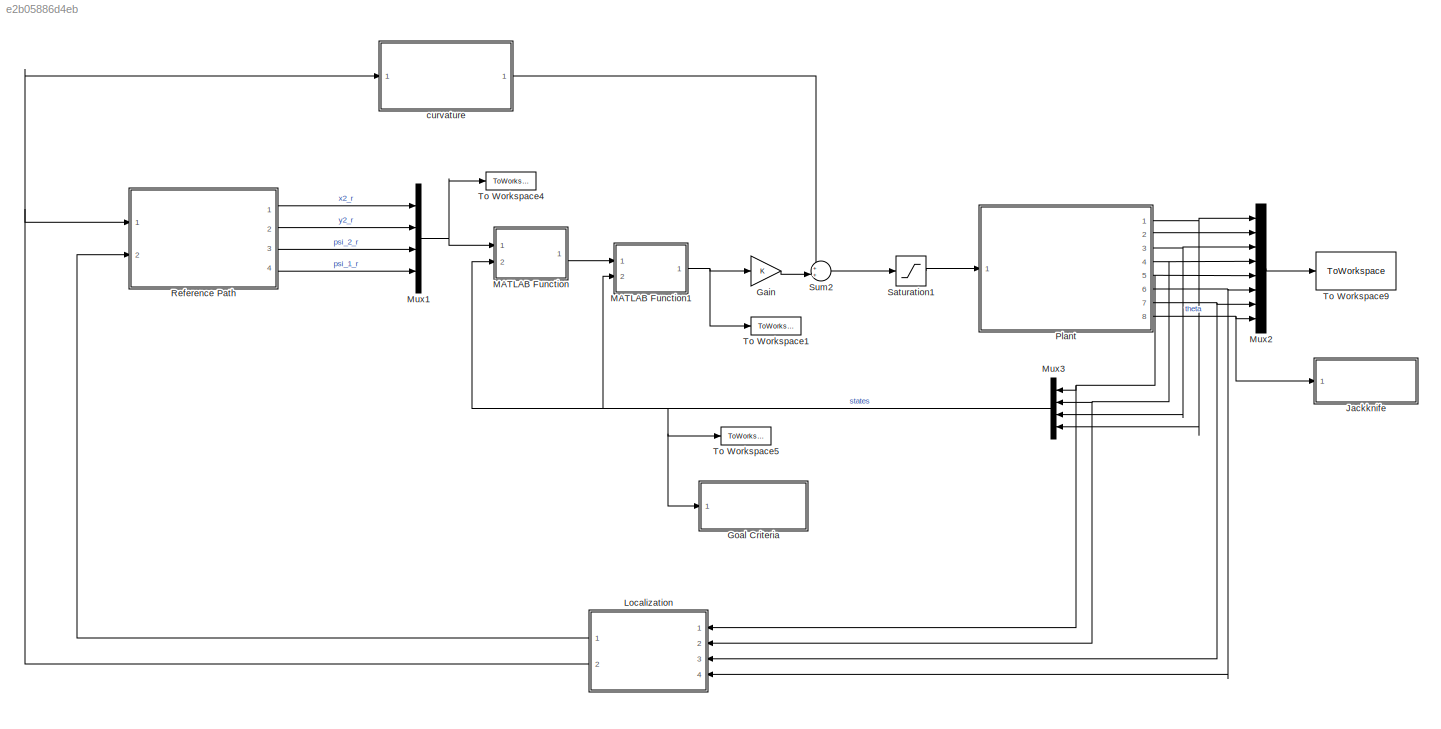
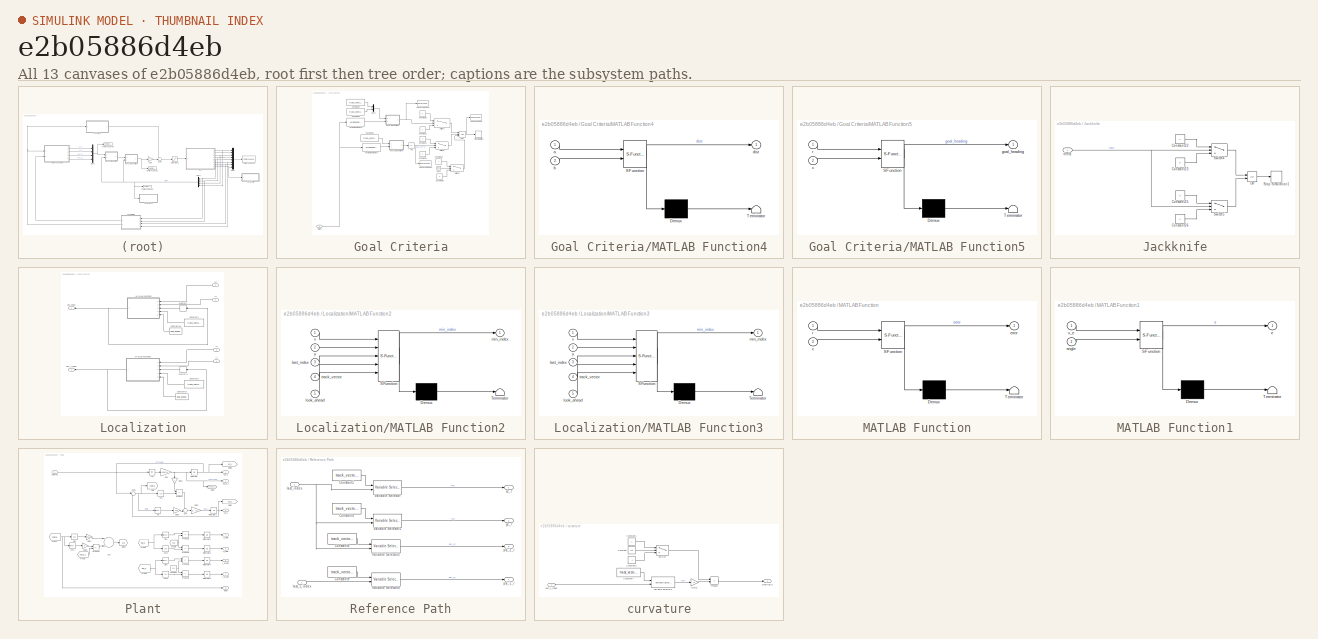
[diagram: thumbnail index - all 13 canvases of the model, root first then tree order]
MODEL slx_e2b05886d4eb
KIND model
CONFIG AbsTol = auto
CONFIG EnableMultiTasking = off
CONFIG FixedStep = .001
CONFIG MaxStep = auto
CONFIG MinStep = auto
CONFIG RelTol = 1e-3
CONFIG SampleTimeConstraint = Unconstrained
CONFIG Solver = VariableStepAuto
CONFIG SolverName = VariableStepAuto
CONFIG StartTime = 0.0
CONFIG StopTime = 40
BLOCK [Gain] Gain
  Gain = K
  Multiplication = Matrix(K*u)
  OutDataTypeStr = Inherit: Inherit via internal rule
  ParamDataTypeStr = Inherit: Inherit via internal rule
  SaturateOnIntegerOverflow = off
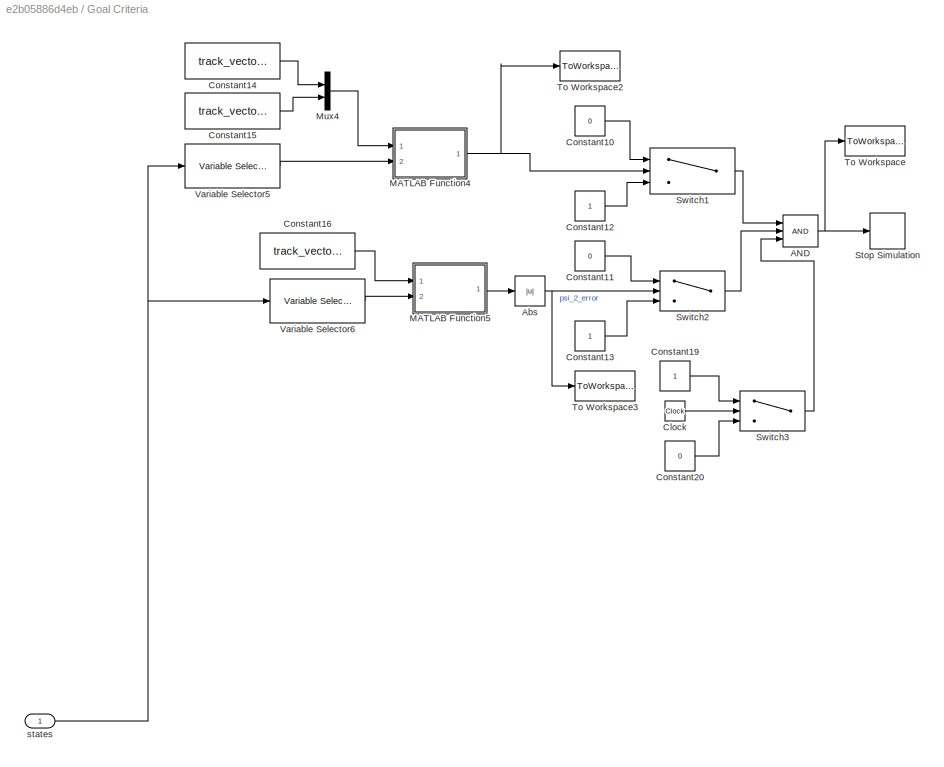
BLOCK [SubSystem] Goal Criteria
  Ports = [1]
  RequestExecContextInheritance = off
BLOCK [Logic] Goal Criteria/AND
  AllPortsSameDT = off
  IconShape = distinctive
  Inputs = 3
  OutDataTypeStr = boolean
  Ports = [3, 1]
BLOCK [Abs] Goal Criteria/Abs
  SaturateOnIntegerOverflow = off
BLOCK [Clock] Goal Criteria/Clock
BLOCK [Constant] Goal Criteria/Constant10
  Value = 0
BLOCK [Constant] Goal Criteria/Constant11
  Value = 0
BLOCK [Constant] Goal Criteria/Constant12
BLOCK [Constant] Goal Criteria/Constant13
BLOCK [Constant] Goal Criteria/Constant14
  Value = track_vector(end, 1)
  VectorParams1D = off
BLOCK [Constant] Goal Criteria/Constant15
  Value = track_vector(end, 2)
  VectorParams1D = off
BLOCK [Constant] Goal Criteria/Constant16
  Value = track_vector(end, 4)
  VectorParams1D = off
BLOCK [Constant] Goal Criteria/Constant19
BLOCK [Constant] Goal Criteria/Constant20
  Value = 0
BLOCK [SubSystem] Goal Criteria/MATLAB Function4
  ErrorFcn = Stateflow.Translate.translate
  PermitHierarchicalResolution = ExplicitOnly
  Ports = [2, 1]
  RequestExecContextInheritance = off
  SFBlockType = MATLAB Function
  TreatAsAtomicUnit = on
BLOCK [Demux] Goal Criteria/MATLAB Function4/ Demux 
  Outputs = 1
  Ports = [1, 1]
BLOCK [S-Function] Goal Criteria/MATLAB Function4/ SFunction 
  EnableBusSupport = on
  FunctionName = sf_sfun
  PortCounts = [2 2]
  Ports = [2, 2]
  SFcnIsStateOwnerBlock = off
  SFunctionDeploymentMode = off
  Tag = Stateflow S-Function LQRTrailerKinematics 5
BLOCK [Terminator] Goal Criteria/MATLAB Function4/ Terminator 
BLOCK [Inport] Goal Criteria/MATLAB Function4/a
  IconDisplay = Port number
BLOCK [Inport] Goal Criteria/MATLAB Function4/b
  IconDisplay = Port number
  Port = 2
BLOCK [Outport] Goal Criteria/MATLAB Function4/dist
  IconDisplay = Port number
BLOCK [SubSystem] Goal Criteria/MATLAB Function5
  ErrorFcn = Stateflow.Translate.translate
  PermitHierarchicalResolution = ExplicitOnly
  Ports = [2, 1]
  RequestExecContextInheritance = off
  SFBlockType = MATLAB Function
  TreatAsAtomicUnit = on
BLOCK [Demux] Goal Criteria/MATLAB Function5/ Demux 
  Outputs = 1
  Ports = [1, 1]
BLOCK [S-Function] Goal Criteria/MATLAB Function5/ SFunction 
  EnableBusSupport = on
  FunctionName = sf_sfun
  PortCounts = [2 2]
  Ports = [2, 2]
  SFcnIsStateOwnerBlock = off
  SFunctionDeploymentMode = off
  Tag = Stateflow S-Function LQRTrailerKinematics 6
BLOCK [Terminator] Goal Criteria/MATLAB Function5/ Terminator 
BLOCK [Inport] Goal Criteria/MATLAB Function5/c
  IconDisplay = Port number
  Port = 2
BLOCK [Outport] Goal Criteria/MATLAB Function5/goal_heading
  IconDisplay = Port number
BLOCK [Inport] Goal Criteria/MATLAB Function5/r
  IconDisplay = Port number
BLOCK [Mux] Goal Criteria/Mux4
  DisplayOption = bar
  Inputs = 2
  Ports = [2, 1]
BLOCK [Stop] Goal Criteria/Stop Simulation
BLOCK [Switch] Goal Criteria/Switch1
  InputSameDT = off
  SaturateOnIntegerOverflow = off
  Threshold = 0.15
BLOCK [Switch] Goal Criteria/Switch2
  InputSameDT = off
  SaturateOnIntegerOverflow = off
  Threshold = 0.1
BLOCK [Switch] Goal Criteria/Switch3
  InputSameDT = off
  SaturateOnIntegerOverflow = off
  Threshold = 1
BLOCK [ToWorkspace] Goal Criteria/To Workspace
  FixptAsFi = on
  MaxDataPoints = inf
  Ports = [1]
  SampleTime = -1
  Save2DSignal = 3-D array (concatenate along third dimension)
  VariableName = goal
BLOCK [ToWorkspace] Goal Criteria/To Workspace2
  FixptAsFi = on
  MaxDataPoints = inf
  Ports = [1]
  SampleTime = -1
  Save2DSignal = 3-D array (concatenate along third dimension)
  VariableName = d_goal
BLOCK [ToWorkspace] Goal Criteria/To Workspace3
  FixptAsFi = on
  MaxDataPoints = inf
  Ports = [1]
  SampleTime = -1
  Save2DSignal = 3-D array (concatenate along third dimension)
  VariableName = psi_goal
BLOCK [Reference] Goal Criteria/Variable Selector5  REF=dspindex/Variable
Selector
  Ports = [1, 1]
  SourceBlock = dspindex/Variable\nSelector
  SourceProductBaseCode = DS
  SourceProductName = DSP System Toolbox
  SourceType = Variable Selector
BLOCK [Reference] Goal Criteria/Variable Selector6  REF=dspindex/Variable
Selector
  Ports = [1, 1]
  SourceBlock = dspindex/Variable\nSelector
  SourceProductBaseCode = DS
  SourceProductName = DSP System Toolbox
  SourceType = Variable Selector
BLOCK [Inport] Goal Criteria/states
  IconDisplay = Port number
BLOCK [SubSystem] Jackknife
  Ports = [1]
  RequestExecContextInheritance = off
BLOCK [Constant] Jackknife/Constant22
BLOCK [Constant] Jackknife/Constant23
  Value = 0
BLOCK [Constant] Jackknife/Constant25
  Value = 0
BLOCK [Constant] Jackknife/Constant26
BLOCK [Logic] Jackknife/OR
  AllPortsSameDT = off
  IconShape = distinctive
  Operator = OR
  OutDataTypeStr = boolean
  Ports = [2, 1]
BLOCK [Stop] Jackknife/Stop Simulation1
BLOCK [Switch] Jackknife/Switch4
  Criteria = u2 > Threshold
  InputSameDT = off
  SaturateOnIntegerOverflow = off
  Threshold = deg2rad(hitch_max)
BLOCK [Switch] Jackknife/Switch5
  Criteria = u2 > Threshold
  InputSameDT = off
  SaturateOnIntegerOverflow = off
  Threshold = deg2rad(-hitch_max)
BLOCK [Inport] Jackknife/theta
  IconDisplay = Port number
BLOCK [SubSystem] Localization
  Ports = [4, 2]
  RequestExecContextInheritance = off
BLOCK [Constant] Localization/Constant17
  Value = look_ahead
BLOCK [Constant] Localization/Constant18
  Value = look_ahead
BLOCK [Constant] Localization/Constant3
  Value = track_vector(:, 1:2)
  VectorParams1D = off
BLOCK [Constant] Localization/Constant8
  Value = track_vector(:, 1:2)
  VectorParams1D = off
BLOCK [SubSystem] Localization/MATLAB Function2
  ErrorFcn = Stateflow.Translate.translate
  PermitHierarchicalResolution = ExplicitOnly
  Ports = [5, 1]
  RequestExecContextInheritance = off
  SFBlockType = MATLAB Function
  TreatAsAtomicUnit = on
BLOCK [Demux] Localization/MATLAB Function2/ Demux 
  Outputs = 1
  Ports = [1, 1]
BLOCK [S-Function] Localization/MATLAB Function2/ SFunction 
  EnableBusSupport = on
  FunctionName = sf_sfun
  PortCounts = [5 2]
  Ports = [5, 2]
  SFcnIsStateOwnerBlock = off
  SFunctionDeploymentMode = off
  Tag = Stateflow S-Function LQRTrailerKinematics 3
BLOCK [Terminator] Localization/MATLAB Function2/ Terminator 
BLOCK [Inport] Localization/MATLAB Function2/last_index
  IconDisplay = Port number
  Port = 3
BLOCK [Inport] Localization/MATLAB Function2/look_ahead
  IconDisplay = Port number
  Port = 5
BLOCK [Outport] Localization/MATLAB Function2/min_index
  IconDisplay = Port number
BLOCK [Inport] Localization/MATLAB Function2/track_vector
  IconDisplay = Port number
  Port = 4
BLOCK [Inport] Localization/MATLAB Function2/x
  IconDisplay = Port number
BLOCK [Inport] Localization/MATLAB Function2/y
  IconDisplay = Port number
  Port = 2
BLOCK [SubSystem] Localization/MATLAB Function3
  ErrorFcn = Stateflow.Translate.translate
  PermitHierarchicalResolution = ExplicitOnly
  Ports = [5, 1]
  RequestExecContextInheritance = off
  SFBlockType = MATLAB Function
  TreatAsAtomicUnit = on
BLOCK [Demux] Localization/MATLAB Function3/ Demux 
  Outputs = 1
  Ports = [1, 1]
BLOCK [S-Function] Localization/MATLAB Function3/ SFunction 
  EnableBusSupport = on
  FunctionName = sf_sfun
  PortCounts = [5 2]
  Ports = [5, 2]
  SFcnIsStateOwnerBlock = off
  SFunctionDeploymentMode = off
  Tag = Stateflow S-Function LQRTrailerKinematics 4
BLOCK [Terminator] Localization/MATLAB Function3/ Terminator 
BLOCK [Inport] Localization/MATLAB Function3/last_index
  IconDisplay = Port number
  Port = 3
BLOCK [Inport] Localization/MATLAB Function3/look_ahead
  IconDisplay = Port number
  Port = 5
BLOCK [Outport] Localization/MATLAB Function3/min_index
  IconDisplay = Port number
BLOCK [Inport] Localization/MATLAB Function3/track_vector
  IconDisplay = Port number
  Port = 4
BLOCK [Inport] Localization/MATLAB Function3/x
  IconDisplay = Port number
BLOCK [Inport] Localization/MATLAB Function3/y
  IconDisplay = Port number
  Port = 2
BLOCK [Memory] Localization/Memory
  InitialCondition = 1
BLOCK [Memory] Localization/Memory1
  InitialCondition = 1
BLOCK [Outport] Localization/last_c_index
  IconDisplay = Port number
  Port = 2
BLOCK [Outport] Localization/last_index
  IconDisplay = Port number
BLOCK [Inport] Localization/x1
  IconDisplay = Port number
  Port = 3
BLOCK [Inport] Localization/x2
  IconDisplay = Port number
BLOCK [Inport] Localization/y1
  IconDisplay = Port number
  Port = 4
BLOCK [Inport] Localization/y2
  IconDisplay = Port number
  Port = 2
BLOCK [SubSystem] MATLAB Function
  ErrorFcn = Stateflow.Translate.translate
  PermitHierarchicalResolution = ExplicitOnly
  Ports = [2, 1]
  RequestExecContextInheritance = off
  SFBlockType = MATLAB Function
  TreatAsAtomicUnit = on
BLOCK [Demux] MATLAB Function/ Demux 
  Outputs = 1
  Ports = [1, 1]
BLOCK [S-Function] MATLAB Function/ SFunction 
  EnableBusSupport = on
  FunctionName = sf_sfun
  PortCounts = [2 2]
  Ports = [2, 2]
  SFcnIsStateOwnerBlock = off
  SFunctionDeploymentMode = off
  Tag = Stateflow S-Function LQRTrailerKinematics 2
BLOCK [Terminator] MATLAB Function/ Terminator 
BLOCK [Inport] MATLAB Function/c
  IconDisplay = Port number
  Port = 2
BLOCK [Outport] MATLAB Function/error
  IconDisplay = Port number
BLOCK [Inport] MATLAB Function/r
  IconDisplay = Port number
BLOCK [SubSystem] MATLAB Function1
  ErrorFcn = Stateflow.Translate.translate
  PermitHierarchicalResolution = ExplicitOnly
  Ports = [2, 1]
  RequestExecContextInheritance = off
  SFBlockType = MATLAB Function
  TreatAsAtomicUnit = on
BLOCK [Demux] MATLAB Function1/ Demux 
  Outputs = 1
  Ports = [1, 1]
BLOCK [S-Function] MATLAB Function1/ SFunction 
  EnableBusSupport = on
  FunctionName = sf_sfun
  PortCounts = [2 2]
  Ports = [2, 2]
  SFcnIsStateOwnerBlock = off
  SFunctionDeploymentMode = off
  Tag = Stateflow S-Function LQRTrailerKinematics 1
BLOCK [Terminator] MATLAB Function1/ Terminator 
BLOCK [Inport] MATLAB Function1/angle
  IconDisplay = Port number
  Port = 2
BLOCK [Outport] MATLAB Function1/e
  IconDisplay = Port number
BLOCK [Inport] MATLAB Function1/x_e
  IconDisplay = Port number
BLOCK [Mux] Mux1
  DisplayOption = bar
  Ports = [4, 1]
BLOCK [Mux] Mux2
  DisplayOption = bar
  Inputs = 8
  Ports = [8, 1]
BLOCK [Mux] Mux3
  DisplayOption = bar
  Ports = [4, 1]
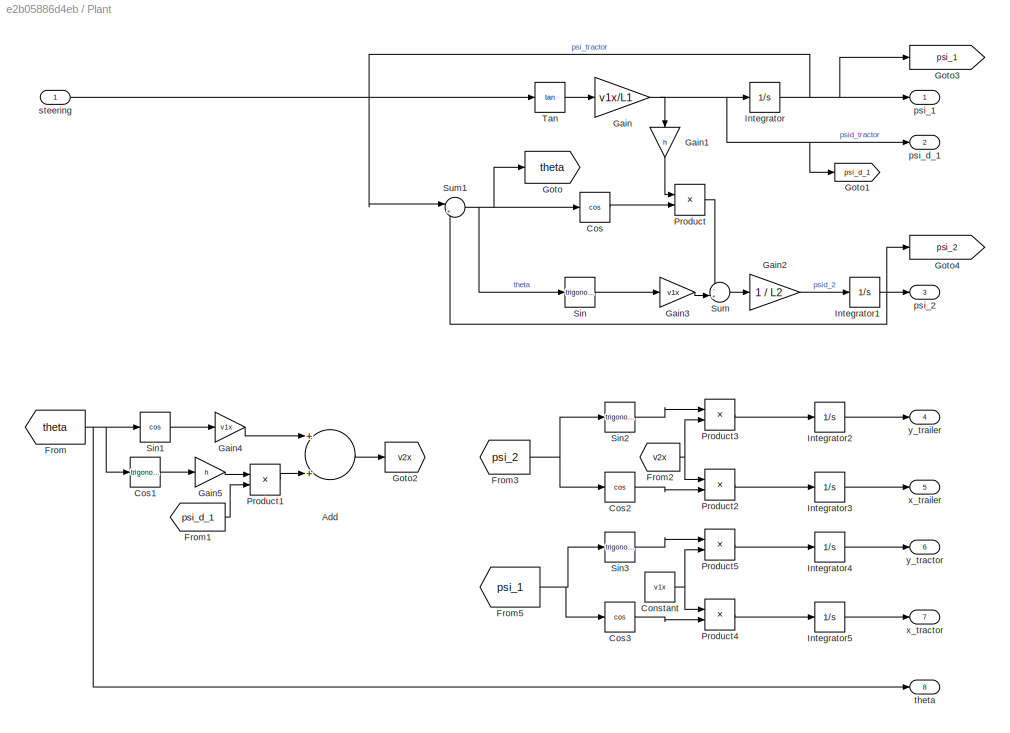
BLOCK [SubSystem] Plant
  Ports = [1, 8]
  RequestExecContextInheritance = off
BLOCK [Sum] Plant/Add
  InputSameDT = off
  OutDataTypeStr = Inherit: Inherit via internal rule
  Ports = [2, 1]
  SaturateOnIntegerOverflow = off
BLOCK [Constant] Plant/Constant
  Value = v1x
BLOCK [Trigonometry] Plant/Cos
  Operator = cos
  Ports = [1, 1]
BLOCK [Trigonometry] Plant/Cos1
  Ports = [1, 1]
BLOCK [Trigonometry] Plant/Cos2
  Operator = cos
  Ports = [1, 1]
BLOCK [Trigonometry] Plant/Cos3
  Operator = cos
  Ports = [1, 1]
BLOCK [From] Plant/From
  GotoTag = theta
BLOCK [From] Plant/From1
  GotoTag = psi_d_1
BLOCK [From] Plant/From2
  GotoTag = v2x
BLOCK [From] Plant/From3
  GotoTag = psi_2
BLOCK [From] Plant/From5
  GotoTag = psi_1
BLOCK [Gain] Plant/Gain
  Gain = v1x/L1
  OutDataTypeStr = Inherit: Inherit via internal rule
  ParamDataTypeStr = Inherit: Inherit via internal rule
  SaturateOnIntegerOverflow = off
BLOCK [Gain] Plant/Gain1
  Gain = h
  OutDataTypeStr = Inherit: Inherit via internal rule
  ParamDataTypeStr = Inherit: Inherit via internal rule
  SaturateOnIntegerOverflow = off
BLOCK [Gain] Plant/Gain2
  Gain = 1 / L2
  OutDataTypeStr = Inherit: Inherit via internal rule
  ParamDataTypeStr = Inherit: Inherit via internal rule
  SaturateOnIntegerOverflow = off
BLOCK [Gain] Plant/Gain3
  Gain = v1x
  OutDataTypeStr = Inherit: Inherit via internal rule
  ParamDataTypeStr = Inherit: Inherit via internal rule
  SaturateOnIntegerOverflow = off
BLOCK [Gain] Plant/Gain4
  Gain = v1x
  OutDataTypeStr = Inherit: Inherit via internal rule
  ParamDataTypeStr = Inherit: Inherit via internal rule
  SaturateOnIntegerOverflow = off
BLOCK [Gain] Plant/Gain5
  Gain = h
  OutDataTypeStr = Inherit: Inherit via internal rule
  ParamDataTypeStr = Inherit: Inherit via internal rule
  SaturateOnIntegerOverflow = off
BLOCK [Goto] Plant/Goto
  GotoTag = theta
BLOCK [Goto] Plant/Goto1
  GotoTag = psi_d_1
BLOCK [Goto] Plant/Goto2
  GotoTag = v2x
BLOCK [Goto] Plant/Goto3
  GotoTag = psi_1
BLOCK [Goto] Plant/Goto4
  GotoTag = psi_2
BLOCK [Integrator] Plant/Integrator
  InitialCondition = ICs(1)
  Ports = [1, 1]
BLOCK [Integrator] Plant/Integrator1
  InitialCondition = ICs(2)
  Ports = [1, 1]
BLOCK [Integrator] Plant/Integrator2
  InitialCondition = trailerIC(2)
  Ports = [1, 1]
BLOCK [Integrator] Plant/Integrator3
  InitialCondition = trailerIC(1)
  Ports = [1, 1]
BLOCK [Integrator] Plant/Integrator4
  InitialCondition = tractorIC(2)
  Ports = [1, 1]
BLOCK [Integrator] Plant/Integrator5
  InitialCondition = tractorIC(1)
  Ports = [1, 1]
BLOCK [Product] Plant/Product
  InputSameDT = off
  OutDataTypeStr = Inherit: Inherit via internal rule
  Ports = [2, 1]
  RndMeth = Floor
  SaturateOnIntegerOverflow = off
BLOCK [Product] Plant/Product1
  InputSameDT = off
  OutDataTypeStr = Inherit: Inherit via internal rule
  Ports = [2, 1]
  RndMeth = Floor
  SaturateOnIntegerOverflow = off
BLOCK [Product] Plant/Product2
  InputSameDT = off
  OutDataTypeStr = Inherit: Inherit via internal rule
  Ports = [2, 1]
  RndMeth = Floor
  SaturateOnIntegerOverflow = off
BLOCK [Product] Plant/Product3
  InputSameDT = off
  OutDataTypeStr = Inherit: Inherit via internal rule
  Ports = [2, 1]
  RndMeth = Floor
  SaturateOnIntegerOverflow = off
BLOCK [Product] Plant/Product4
  InputSameDT = off
  OutDataTypeStr = Inherit: Inherit via internal rule
  Ports = [2, 1]
  RndMeth = Floor
  SaturateOnIntegerOverflow = off
BLOCK [Product] Plant/Product5
  InputSameDT = off
  OutDataTypeStr = Inherit: Inherit via internal rule
  Ports = [2, 1]
  RndMeth = Floor
  SaturateOnIntegerOverflow = off
BLOCK [Trigonometry] Plant/Sin
  Ports = [1, 1]
BLOCK [Trigonometry] Plant/Sin1
  Operator = cos
  Ports = [1, 1]
BLOCK [Trigonometry] Plant/Sin2
  Ports = [1, 1]
BLOCK [Trigonometry] Plant/Sin3
  Ports = [1, 1]
BLOCK [Sum] Plant/Sum
  IconShape = round
  InputSameDT = off
  Inputs = -+|
  OutDataTypeStr = Inherit: Inherit via internal rule
  Ports = [2, 1]
  SaturateOnIntegerOverflow = off
BLOCK [Sum] Plant/Sum1
  IconShape = round
  InputSameDT = off
  Inputs = |+-
  OutDataTypeStr = Inherit: Inherit via internal rule
  Ports = [2, 1]
  SaturateOnIntegerOverflow = off
BLOCK [Trigonometry] Plant/Tan
  Operator = tan
  Ports = [1, 1]
BLOCK [Outport] Plant/psi_1
  IconDisplay = Port number
BLOCK [Outport] Plant/psi_2
  IconDisplay = Port number
  Port = 3
BLOCK [Outport] Plant/psi_d_1
  IconDisplay = Port number
  Port = 2
BLOCK [Inport] Plant/steering
  IconDisplay = Port number
BLOCK [Outport] Plant/theta
  IconDisplay = Port number
  Port = 8
BLOCK [Outport] Plant/x_tractor
  IconDisplay = Port number
  Port = 7
BLOCK [Outport] Plant/x_trailer
  IconDisplay = Port number
  Port = 5
BLOCK [Outport] Plant/y_tractor
  IconDisplay = Port number
  Port = 6
BLOCK [Outport] Plant/y_trailer
  IconDisplay = Port number
  Port = 4
BLOCK [SubSystem] Reference Path
  Ports = [2, 4]
  RequestExecContextInheritance = off
BLOCK [Constant] Reference Path/Constant4
  Value = track_vector(:, 2)
  VectorParams1D = off
BLOCK [Constant] Reference Path/Constant5
  Value = track_vector(:, 1)
  VectorParams1D = off
BLOCK [Constant] Reference Path/Constant6
  Value = track_vector(:, 4)
  VectorParams1D = off
BLOCK [Constant] Reference Path/Constant9
  Value = track_vector(:, 4)
  VectorParams1D = off
BLOCK [Reference] Reference Path/Variable Selector  REF=dspindex/Variable
Selector
  Ports = [2, 1]
  SourceBlock = dspindex/Variable\nSelector
  SourceProductBaseCode = DS
  SourceProductName = DSP System Toolbox
  SourceType = Variable Selector
BLOCK [Reference] Reference Path/Variable Selector1  REF=dspindex/Variable
Selector
  Ports = [2, 1]
  SourceBlock = dspindex/Variable\nSelector
  SourceProductBaseCode = DS
  SourceProductName = DSP System Toolbox
  SourceType = Variable Selector
BLOCK [Reference] Reference Path/Variable Selector2  REF=dspindex/Variable
Selector
  Ports = [2, 1]
  SourceBlock = dspindex/Variable\nSelector
  SourceProductBaseCode = DS
  SourceProductName = DSP System Toolbox
  SourceType = Variable Selector
BLOCK [Reference] Reference Path/Variable Selector4  REF=dspindex/Variable
Selector
  Ports = [2, 1]
  SourceBlock = dspindex/Variable\nSelector
  SourceProductBaseCode = DS
  SourceProductName = DSP System Toolbox
  SourceType = Variable Selector
BLOCK [Inport] Reference Path/last_c_index
  IconDisplay = Port number
BLOCK [Inport] Reference Path/last_index
  IconDisplay = Port number
  Port = 2
BLOCK [Outport] Reference Path/psi_1_r
  IconDisplay = Port number
  Port = 4
BLOCK [Outport] Reference Path/psi_2_r
  IconDisplay = Port number
  Port = 3
BLOCK [Outport] Reference Path/x2_r
  IconDisplay = Port number
BLOCK [Outport] Reference Path/y2_r
  IconDisplay = Port number
  Port = 2
BLOCK [Saturate] Saturation1
  InputPortMap = u0
  LowerLimit = -deg2rad(steer_max)
  Ports = [1, 1]
  UpperLimit = deg2rad(steer_max)
BLOCK [Sum] Sum2
  IconShape = round
  InputSameDT = off
  Inputs = ++|
  OutDataTypeStr = Inherit: Inherit via internal rule
  Ports = [2, 1]
  SaturateOnIntegerOverflow = off
BLOCK [ToWorkspace] To Workspace1
  FixptAsFi = on
  MaxDataPoints = inf
  Ports = [1]
  SampleTime = -1
  Save2DSignal = 3-D array (concatenate along third dimension)
  VariableName = error
BLOCK [ToWorkspace] To Workspace4
  FixptAsFi = on
  MaxDataPoints = inf
  Ports = [1]
  SampleTime = -1
  Save2DSignal = 3-D array (concatenate along third dimension)
  VariableName = r
BLOCK [ToWorkspace] To Workspace5
  FixptAsFi = on
  MaxDataPoints = inf
  Ports = [1]
  SampleTime = -1
  Save2DSignal = 3-D array (concatenate along third dimension)
  VariableName = states
BLOCK [ToWorkspace] To Workspace9
  FixptAsFi = on
  MaxDataPoints = inf
  Ports = [1]
  SampleTime = -1
  Save2DSignal = 3-D array (concatenate along third dimension)
  VariableName = odometry
BLOCK [SubSystem] curvature
  Ports = [1, 1]
  RequestExecContextInheritance = off
BLOCK [Constant] curvature/Constant
  Value = v1x
BLOCK [Constant] curvature/Constant1
BLOCK [Constant] curvature/Constant2
  Value = -1
BLOCK [Constant] curvature/Constant7
  Value = track_vector(:, 3)
  VectorParams1D = off
BLOCK [Gain] curvature/Gain1
  Gain = L1
  OutDataTypeStr = Inherit: Inherit via internal rule
  ParamDataTypeStr = Inherit: Inherit via internal rule
  SaturateOnIntegerOverflow = off
BLOCK [Product] curvature/Product
  InputSameDT = off
  OutDataTypeStr = Inherit: Inherit via internal rule
  Ports = [2, 1]
  RndMeth = Floor
  SaturateOnIntegerOverflow = off
BLOCK [Switch] curvature/Switch
  Criteria = u2 > Threshold
  InputSameDT = off
  SaturateOnIntegerOverflow = off
BLOCK [Reference] curvature/Variable Selector3  REF=dspindex/Variable
Selector
  Ports = [2, 1]
  SourceBlock = dspindex/Variable\nSelector
  SourceProductBaseCode = DS
  SourceProductName = DSP System Toolbox
  SourceType = Variable Selector
BLOCK [Inport] curvature/last_c_index
  IconDisplay = Port number
BLOCK [Outport] curvature/steering_ff
  IconDisplay = Port number
LINE Gain:1 -> Sum2:2
NET Goal Criteria/AND:1 -> Goal Criteria/Stop Simulation:1, Goal Criteria/To Workspace:1
NET Goal Criteria/Abs:1 -> Goal Criteria/Switch2:2, Goal Criteria/To Workspace3:1
LINE Goal Criteria/Clock:1 -> Goal Criteria/Switch3:2
LINE Goal Criteria/Constant10:1 -> Goal Criteria/Switch1:1
LINE Goal Criteria/Constant11:1 -> Goal Criteria/Switch2:1
LINE Goal Criteria/Constant12:1 -> Goal Criteria/Switch1:3
LINE Goal Criteria/Constant13:1 -> Goal Criteria/Switch2:3
LINE Goal Criteria/Constant14:1 -> Goal Criteria/Mux4:1
LINE Goal Criteria/Constant15:1 -> Goal Criteria/Mux4:2
LINE Goal Criteria/Constant16:1 -> Goal Criteria/MATLAB Function5:1
LINE Goal Criteria/Constant19:1 -> Goal Criteria/Switch3:1
LINE Goal Criteria/Constant20:1 -> Goal Criteria/Switch3:3
NET Goal Criteria/MATLAB Function4:1 -> Goal Criteria/Switch1:2, Goal Criteria/To Workspace2:1
LINE Goal Criteria/MATLAB Function5:1 -> Goal Criteria/Abs:1
LINE Goal Criteria/Mux4:1 -> Goal Criteria/MATLAB Function4:1
LINE Goal Criteria/Switch1:1 -> Goal Criteria/AND:1
LINE Goal Criteria/Switch2:1 -> Goal Criteria/AND:2
LINE Goal Criteria/Switch3:1 -> Goal Criteria/AND:3
LINE Goal Criteria/Variable Selector5:1 -> Goal Criteria/MATLAB Function4:2
LINE Goal Criteria/Variable Selector6:1 -> Goal Criteria/MATLAB Function5:2
NET Goal Criteria/states:1 -> Goal Criteria/Variable Selector5:1, Goal Criteria/Variable Selector6:1
LINE Jackknife/Constant22:1 -> Jackknife/Switch4:1
LINE Jackknife/Constant23:1 -> Jackknife/Switch4:3
LINE Jackknife/Constant25:1 -> Jackknife/Switch5:1
LINE Jackknife/Constant26:1 -> Jackknife/Switch5:3
LINE Jackknife/OR:1 -> Jackknife/Stop Simulation1:1
LINE Jackknife/Switch4:1 -> Jackknife/OR:1
LINE Jackknife/Switch5:1 -> Jackknife/OR:2
NET Jackknife/theta:1 -> Jackknife/Switch4:2, Jackknife/Switch5:2
LINE Localization/Constant17:1 -> Localization/MATLAB Function3:5
LINE Localization/Constant18:1 -> Localization/MATLAB Function2:5
LINE Localization/Constant3:1 -> Localization/MATLAB Function2:4
LINE Localization/Constant8:1 -> Localization/MATLAB Function3:4
NET Localization/MATLAB Function2:1 -> Localization/Memory:1, Localization/last_index:1
NET Localization/MATLAB Function3:1 -> Localization/Memory1:1, Localization/last_c_index:1
LINE Localization/Memory1:1 -> Localization/MATLAB Function3:3
LINE Localization/Memory:1 -> Localization/MATLAB Function2:3
LINE Localization/x1:1 -> Localization/MATLAB Function3:1
LINE Localization/x2:1 -> Localization/MATLAB Function2:1
LINE Localization/y1:1 -> Localization/MATLAB Function3:2
LINE Localization/y2:1 -> Localization/MATLAB Function2:2
LINE Localization:1 -> Reference Path:2
NET Localization:2 -> Reference Path:1, curvature:1
NET MATLAB Function1:1 -> Gain:1, To Workspace1:1
LINE MATLAB Function:1 -> MATLAB Function1:1
NET Mux1:1 -> MATLAB Function:1, To Workspace4:1
LINE Mux2:1 -> To Workspace9:1
NET Mux3:1 -> Goal Criteria:1, MATLAB Function1:2, MATLAB Function:2, To Workspace5:1
LINE Plant/Add:1 -> Plant/Goto2:1
NET Plant/Constant:1 -> Plant/Product4:1, Plant/Product5:2
LINE Plant/Cos1:1 -> Plant/Gain5:1
LINE Plant/Cos2:1 -> Plant/Product2:2
LINE Plant/Cos3:1 -> Plant/Product4:2
LINE Plant/Cos:1 -> Plant/Product:2
LINE Plant/From1:1 -> Plant/Product1:2
NET Plant/From2:1 -> Plant/Product2:1, Plant/Product3:2
NET Plant/From3:1 -> Plant/Cos2:1, Plant/Sin2:1
NET Plant/From5:1 -> Plant/Cos3:1, Plant/Sin3:1
NET Plant/From:1 -> Plant/Cos1:1, Plant/Sin1:1, Plant/theta:1
LINE Plant/Gain1:1 -> Plant/Product:1
LINE Plant/Gain2:1 -> Plant/Integrator1:1
LINE Plant/Gain3:1 -> Plant/Sum:2
LINE Plant/Gain4:1 -> Plant/Add:1
LINE Plant/Gain5:1 -> Plant/Product1:1
NET Plant/Gain:1 -> Plant/Gain1:1, Plant/Goto1:1, Plant/Integrator:1, Plant/psi_d_1:1
NET Plant/Integrator1:1 -> Plant/Goto4:1, Plant/Sum1:2, Plant/psi_2:1
LINE Plant/Integrator2:1 -> Plant/y_trailer:1
LINE Plant/Integrator3:1 -> Plant/x_trailer:1
LINE Plant/Integrator4:1 -> Plant/y_tractor:1
LINE Plant/Integrator5:1 -> Plant/x_tractor:1
NET Plant/Integrator:1 -> Plant/Goto3:1, Plant/Sum1:1, Plant/psi_1:1
LINE Plant/Product1:1 -> Plant/Add:2
LINE Plant/Product2:1 -> Plant/Integrator3:1
LINE Plant/Product3:1 -> Plant/Integrator2:1
LINE Plant/Product4:1 -> Plant/Integrator5:1
LINE Plant/Product5:1 -> Plant/Integrator4:1
LINE Plant/Product:1 -> Plant/Sum:1
LINE Plant/Sin1:1 -> Plant/Gain4:1
LINE Plant/Sin2:1 -> Plant/Product3:1
LINE Plant/Sin3:1 -> Plant/Product5:1
LINE Plant/Sin:1 -> Plant/Gain3:1
NET Plant/Sum1:1 -> Plant/Cos:1, Plant/Goto:1, Plant/Sin:1
LINE Plant/Sum:1 -> Plant/Gain2:1
LINE Plant/Tan:1 -> Plant/Gain:1
LINE Plant/steering:1 -> Plant/Tan:1
NET Plant:1 -> Mux2:1, Mux3:4
LINE Plant:2 -> Mux2:2
NET Plant:3 -> Mux2:3, Mux3:3
NET Plant:4 -> Localization:2, Mux2:4, Mux3:2
NET Plant:5 -> Localization:1, Mux2:5, Mux3:1
NET Plant:6 -> Localization:4, Mux2:6
NET Plant:7 -> Localization:3, Mux2:7
NET Plant:8 -> Jackknife:1, Mux2:8
LINE Reference Path/Constant4:1 -> Reference Path/Variable Selector1:1
LINE Reference Path/Constant5:1 -> Reference Path/Variable Selector:1
LINE Reference Path/Constant6:1 -> Reference Path/Variable Selector2:1
LINE Reference Path/Constant9:1 -> Reference Path/Variable Selector4:1
LINE Reference Path/Variable Selector1:1 -> Reference Path/y2_r:1
LINE Reference Path/Variable Selector2:1 -> Reference Path/psi_2_r:1
LINE Reference Path/Variable Selector4:1 -> Reference Path/psi_1_r:1
LINE Reference Path/Variable Selector:1 -> Reference Path/x2_r:1
LINE Reference Path/last_c_index:1 -> Reference Path/Variable Selector4:2
NET Reference Path/last_index:1 -> Reference Path/Variable Selector1:2, Reference Path/Variable Selector2:2, Reference Path/Variable Selector:2
LINE Reference Path:1 -> Mux1:1
LINE Reference Path:2 -> Mux1:2
LINE Reference Path:3 -> Mux1:3
LINE Reference Path:4 -> Mux1:4
LINE Saturation1:1 -> Plant:1
LINE Sum2:1 -> Saturation1:1
LINE curvature/Constant1:1 -> curvature/Switch:1
LINE curvature/Constant2:1 -> curvature/Switch:3
LINE curvature/Constant7:1 -> curvature/Variable Selector3:1
LINE curvature/Constant:1 -> curvature/Switch:2
LINE curvature/Gain1:1 -> curvature/Product:2
LINE curvature/Product:1 -> curvature/steering_ff:1
LINE curvature/Switch:1 -> curvature/Product:1
LINE curvature/Variable Selector3:1 -> curvature/Gain1:1
LINE curvature/last_c_index:1 -> curvature/Variable Selector3:2
LINE curvature:1 -> Sum2:1
note: NET lines group one-source signal fan-out (src -> all destinations, sorted); 1:1 wires keep LINE
CHART MATLAB Function1 states=1 transitions=1
  STATE_LABEL 'eML_blk_kernel()'
  STATE_LABEL 'SCRIPT:\nfunction e = DCM(x_e, angle)\n    % x_e = [x_r, y_r, yaw_trailer, yaw_tractor]\n    e = zeros(3, 1);\n    \n    DCM = @(ang) [cos(ang)  sin(ang) 0;\n                  -sin(ang) cos(ang) 0;\n                  0         0        1];\n\n    E = DCM(angle(3)) * x_e(1:3, 1);\n    % e = [yaw_tractor, yaw_trailer, y_r]\n    e(1, 1) = x_e(4, 1);\n    e(2, 1) = E(3, 1);\n    e(3, 1) = E(2, 1);'
CHART MATLAB Function states=1 transitions=1
  STATE_LABEL 'eML_blk_kernel()'
  STATE_LABEL 'SCRIPT:\nfunction error = safeminus(r, c)\n    error = zeros(4, 1);\n    error(1, 1) = r(1) - c(1);\n    error(2, 1) = r(2) - c(2);\n   \n    % Amro Thesis\n    psi_1_e = r(3) - c(3);\n    if abs(psi_1_e) <= pi\n        error(3, 1) = psi_1_e;\n    else\n        error(3, 1) = psi_1_e - 2*pi*sign(psi_1_e);\n    end\n    \n    psi_2_e = r(4) - c(4);\n    if abs(psi_2_e) <= pi\n        error(4, 1) = psi_2_e;\n    else...<+121ch>'
CHART Localization/MATLAB Function2 states=1 transitions=1
  STATE_LABEL 'eML_blk_kernel()'
  STATE_LABEL 'SCRIPT:\n%% Localisation\nfunction min_index  = get_closest_index(x, y, last_index, track_vector, look_ahead)\n    min_index = last_index;\n    min_dist = distance([track_vector(last_index, 1), track_vector(last_index, 2)], [x, y]);\n    search_forward = true;\n    \n    % search behind first\n    search_behind = 10;\n    if last_index > search_behind\n        last_index = last_index - search_behind;\n    en...<+1132ch>'
CHART Localization/MATLAB Function3 states=1 transitions=1
  STATE_LABEL 'eML_blk_kernel()'
  STATE_LABEL 'SCRIPT:\n%% Localisation\nfunction min_index  = get_closest_index(x, y, last_index, track_vector, look_ahead)\n    min_index = last_index;\n    min_dist = distance([track_vector(last_index, 1), track_vector(last_index, 2)], [x, y]);\n    search_forward = true;\n    \n    % search behind\n    search_behind = 10;\n    if last_index > search_behind\n        last_index = last_index - search_behind;\n    end\n    ...<+1125ch>'
CHART Goal Criteria/MATLAB Function4 states=1 transitions=1
  STATE_LABEL 'eML_blk_kernel()'
  STATE_LABEL 'SCRIPT:\nfunction dist  = distance(a, b)\n    dist = sqrt((b(1) - a(1)).^2 + (b(2) - a(2)).^2);\nend'
CHART Goal Criteria/MATLAB Function5 states=1 transitions=1
  STATE_LABEL 'eML_blk_kernel()'
  STATE_LABEL 'SCRIPT:\nfunction goal_heading = safe_subtract(r, c)\n    % Amro Thesis\n    psi_1_e = r - c;\n    if abs(psi_1_e) <= pi\n        goal_heading = psi_1_e;\n    else\n        goal_heading = psi_1_e - 2*pi*sign(psi_1_e);\n    end\nend'
